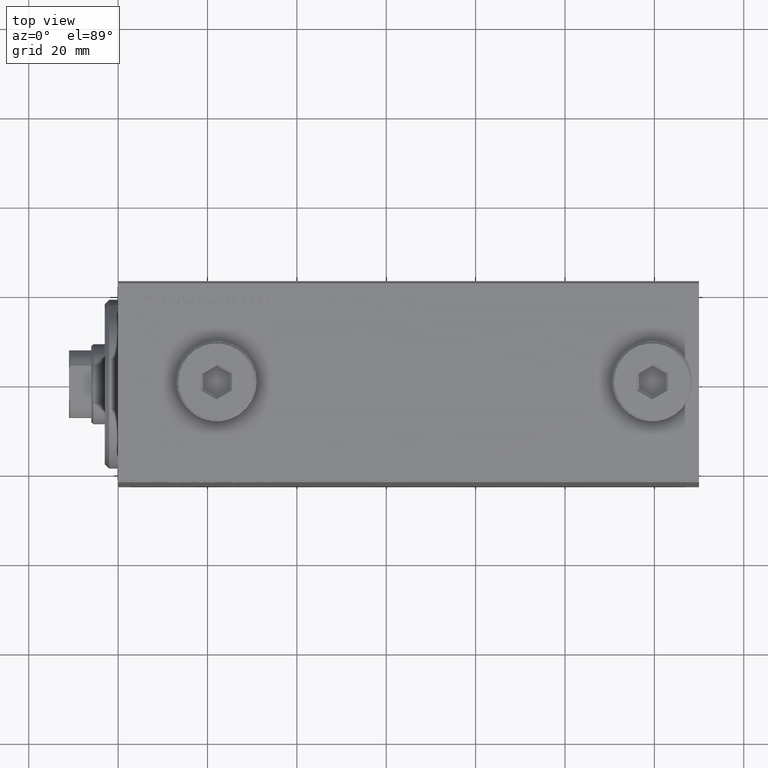
[diagram: clean part render]
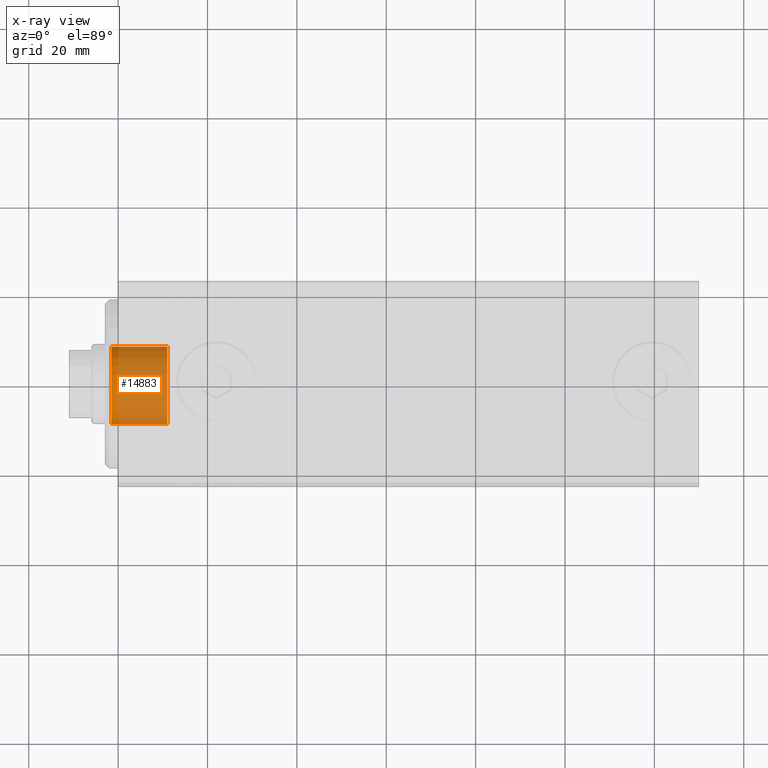
[diagram: x-ray — body ghosted, one internal face saturated and labeled with its STEP entity id]
A machine part, top view, then the same camera in x-ray: the body is ghosted and one INTERNAL B-rep face — a face not visible from any outside direction — is saturated and labeled: STEP entity #14883.
In plain terms, the highlighted cylindrical surface (partial cylindrical patch) has radius 9 mm, axis along (-1, 0, 0).
Its self-contained STEP definition (entity closure, byte-faithful):
#814 = DIRECTION ( 'NONE',  ( 1.000000000000000000, -0.000000000000000000, -0.000000000000000000 ) ) ;
#2034 = CIRCLE ( 'NONE', #24681, 9.000000000000000000 ) ;
#2658 = AXIS2_PLACEMENT_3D ( 'NONE', #26138, #43706, #40060 ) ;
#3983 = VERTEX_POINT ( 'NONE', #4675 ) ;
#4561 = CARTESIAN_POINT ( 'NONE',  ( -11.00000000000000000, 0.000000000000000000, -9.000000000000000000 ) ) ;
#4675 = CARTESIAN_POINT ( 'NONE',  ( 1.499999999999999556, 0.000000000000000000, -9.000000000000000000 ) ) ;
#6079 = ORIENTED_EDGE ( 'NONE', *, *, #8704, .T. ) ;
#7249 = CARTESIAN_POINT ( 'NONE',  ( -11.00000000000000000, 1.102182119232617517E-15, 9.000000000000000000 ) ) ;
#8514 = CARTESIAN_POINT ( 'NONE',  ( 1.499999999999999556, 1.102182119232617517E-15, 9.000000000000000000 ) ) ;
#8519 = ORIENTED_EDGE ( 'NONE', *, *, #27189, .F. ) ;
#8704 = EDGE_CURVE ( 'NONE', #18243, #35270, #11135, .T. ) ;
#11135 = LINE ( 'NONE', #7249, #34553 ) ;
#14785 = DIRECTION ( 'NONE',  ( 0.000000000000000000, 0.000000000000000000, -1.000000000000000000 ) ) ;
#14883 = ADVANCED_FACE ( 'NONE', ( #17316 ), #42440, .F. ) ;
#15100 = LINE ( 'NONE', #4561, #37629 ) ;
#17316 = FACE_OUTER_BOUND ( 'NONE', #31062, .T. ) ;
#17329 = DIRECTION ( 'NONE',  ( 1.000000000000000000, -0.000000000000000000, -0.000000000000000000 ) ) ;
#18243 = VERTEX_POINT ( 'NONE', #33734 ) ;
#21204 = CARTESIAN_POINT ( 'NONE',  ( -11.00000000000000000, 0.000000000000000000, 0.000000000000000000 ) ) ;
#21664 = CIRCLE ( 'NONE', #2658, 9.000000000000000000 ) ;
#21732 = DIRECTION ( 'NONE',  ( 1.000000000000000000, -0.000000000000000000, -0.000000000000000000 ) ) ;
#24256 = VERTEX_POINT ( 'NONE', #33773 ) ;
#24420 = DIRECTION ( 'NONE',  ( 1.000000000000000000, 0.000000000000000000, 0.000000000000000000 ) ) ;
#24681 = AXIS2_PLACEMENT_3D ( 'NONE', #31941, #24420, #38787 ) ;
#26138 = CARTESIAN_POINT ( 'NONE',  ( -11.00000000000000000, 0.000000000000000000, 0.000000000000000000 ) ) ;
#27189 = EDGE_CURVE ( 'NONE', #24256, #3983, #15100, .T. ) ;
#31062 = EDGE_LOOP ( 'NONE', ( #40537, #6079, #39017, #8519 ) ) ;
#31120 = EDGE_CURVE ( 'NONE', #18243, #24256, #21664, .T. ) ;
#31941 = CARTESIAN_POINT ( 'NONE',  ( 1.499999999999999556, 0.000000000000000000, 0.000000000000000000 ) ) ;
#33734 = CARTESIAN_POINT ( 'NONE',  ( -11.00000000000000000, 1.102182119232617517E-15, 9.000000000000000000 ) ) ;
#33773 = CARTESIAN_POINT ( 'NONE',  ( -11.00000000000000000, 0.000000000000000000, -9.000000000000000000 ) ) ;
#34446 = EDGE_CURVE ( 'NONE', #35270, #3983, #2034, .T. ) ;
#34553 = VECTOR ( 'NONE', #17329, 1000.000000000000000 ) ;
#35270 = VERTEX_POINT ( 'NONE', #8514 ) ;
#35966 = AXIS2_PLACEMENT_3D ( 'NONE', #21204, #814, #14785 ) ;
#37629 = VECTOR ( 'NONE', #21732, 1000.000000000000000 ) ;
#38787 = DIRECTION ( 'NONE',  ( 0.000000000000000000, 0.000000000000000000, -1.000000000000000000 ) ) ;
#39017 = ORIENTED_EDGE ( 'NONE', *, *, #34446, .T. ) ;
#40060 = DIRECTION ( 'NONE',  ( 0.000000000000000000, 0.000000000000000000, -1.000000000000000000 ) ) ;
#40537 = ORIENTED_EDGE ( 'NONE', *, *, #31120, .F. ) ;
#42440 = CYLINDRICAL_SURFACE ( 'NONE', #35966, 9.000000000000000000 ) ;
#43706 = DIRECTION ( 'NONE',  ( 1.000000000000000000, 0.000000000000000000, 0.000000000000000000 ) ) ;